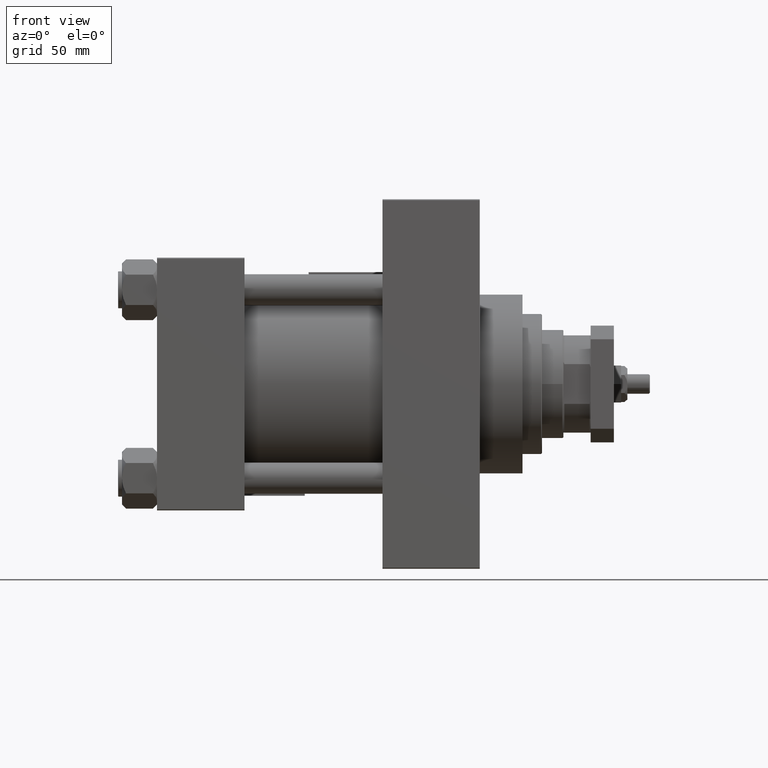
[diagram: clean part render]
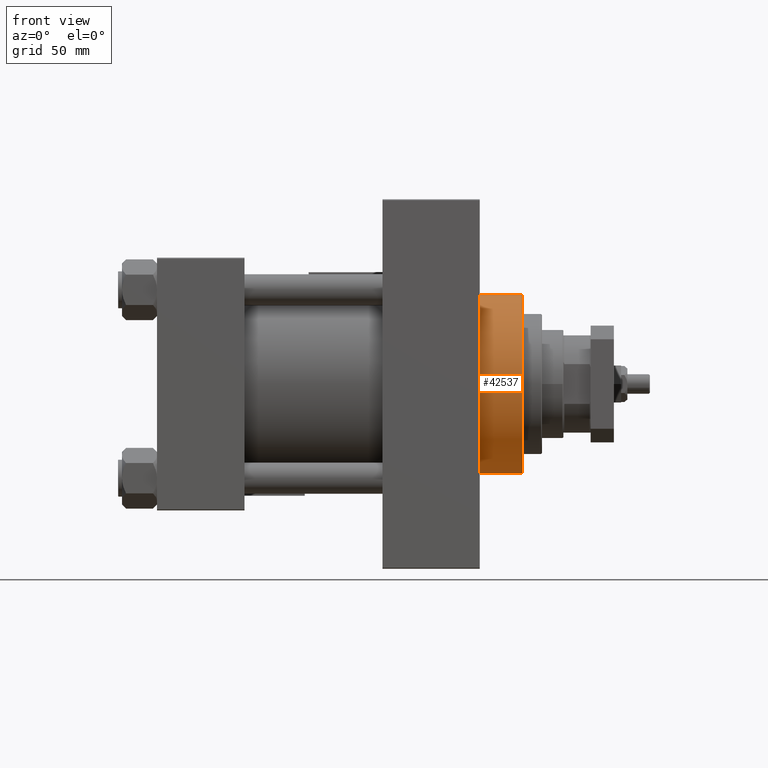
[diagram: same view with one face highlighted and labeled with its STEP entity id]
A machine part, front view. The second image highlights one B-rep face of the part: STEP entity #42537.
In plain terms, the highlighted cylindrical surface (partial cylindrical patch) has radius 46 mm, axis along (-1, -0, -0).
Its self-contained STEP definition (entity closure, byte-faithful):
#951 = EDGE_LOOP ( 'NONE', ( #29225, #3516, #38727, #40264 ) ) ;
#1208 = CARTESIAN_POINT ( 'NONE',  ( 165.9999999999999716, 0.000000000000000000, 46.00000000000000000 ) ) ;
#1877 = CIRCLE ( 'NONE', #52101, 46.00000000000000000 ) ;
#2522 = AXIS2_PLACEMENT_3D ( 'NONE', #33751, #8888, #5083 ) ;
#3032 = LINE ( 'NONE', #52489, #6439 ) ;
#3516 = ORIENTED_EDGE ( 'NONE', *, *, #42127, .F. ) ;
#3755 = VERTEX_POINT ( 'NONE', #34724 ) ;
#4289 = CARTESIAN_POINT ( 'NONE',  ( 165.9999999999999716, 5.633375276077824704E-15, -46.00000000000000000 ) ) ;
#5083 = DIRECTION ( 'NONE',  ( 0.000000000000000000, 0.000000000000000000, -1.000000000000000000 ) ) ;
#5977 = AXIS2_PLACEMENT_3D ( 'NONE', #49874, #41540, #18467 ) ;
#6439 = VECTOR ( 'NONE', #15466, 1000.000000000000000 ) ;
#8888 = DIRECTION ( 'NONE',  ( 1.000000000000000000, 0.000000000000000000, 0.000000000000000000 ) ) ;
#10119 = VECTOR ( 'NONE', #41156, 1000.000000000000000 ) ;
#14148 = FACE_OUTER_BOUND ( 'NONE', #951, .T. ) ;
#14224 = VERTEX_POINT ( 'NONE', #1208 ) ;
#15318 = VERTEX_POINT ( 'NONE', #4289 ) ;
#15466 = DIRECTION ( 'NONE',  ( -1.000000000000000000, -0.000000000000000000, -0.000000000000000000 ) ) ;
#16202 = EDGE_CURVE ( 'NONE', #14224, #15318, #1877, .T. ) ;
#17588 = CARTESIAN_POINT ( 'NONE',  ( 165.9999999999999716, 0.000000000000000000, 0.000000000000000000 ) ) ;
#18467 = DIRECTION ( 'NONE',  ( 0.000000000000000000, 0.000000000000000000, 1.000000000000000000 ) ) ;
#23128 = CARTESIAN_POINT ( 'NONE',  ( 187.9999999999999716, 5.633375276077824704E-15, -46.00000000000000000 ) ) ;
#27056 = DIRECTION ( 'NONE',  ( 0.000000000000000000, 0.000000000000000000, -1.000000000000000000 ) ) ;
#28471 = CARTESIAN_POINT ( 'NONE',  ( 187.9999999999999716, 5.633375276077824704E-15, -46.00000000000000000 ) ) ;
#29225 = ORIENTED_EDGE ( 'NONE', *, *, #46734, .F. ) ;
#31901 = CIRCLE ( 'NONE', #2522, 46.00000000000000000 ) ;
#32049 = EDGE_CURVE ( 'NONE', #3755, #14224, #3032, .T. ) ;
#32862 = VERTEX_POINT ( 'NONE', #23128 ) ;
#33751 = CARTESIAN_POINT ( 'NONE',  ( 187.9999999999999716, 0.000000000000000000, 0.000000000000000000 ) ) ;
#34724 = CARTESIAN_POINT ( 'NONE',  ( 187.9999999999999716, 0.000000000000000000, 46.00000000000000000 ) ) ;
#36835 = LINE ( 'NONE', #28471, #10119 ) ;
#38727 = ORIENTED_EDGE ( 'NONE', *, *, #32049, .T. ) ;
#40264 = ORIENTED_EDGE ( 'NONE', *, *, #16202, .T. ) ;
#41156 = DIRECTION ( 'NONE',  ( -1.000000000000000000, -0.000000000000000000, -0.000000000000000000 ) ) ;
#41540 = DIRECTION ( 'NONE',  ( -1.000000000000000000, -0.000000000000000000, -0.000000000000000000 ) ) ;
#42127 = EDGE_CURVE ( 'NONE', #3755, #32862, #31901, .T. ) ;
#42537 = ADVANCED_FACE ( 'NONE', ( #14148 ), #47093, .T. ) ;
#46734 = EDGE_CURVE ( 'NONE', #32862, #15318, #36835, .T. ) ;
#47093 = CYLINDRICAL_SURFACE ( 'NONE', #5977, 46.00000000000000000 ) ;
#47302 = DIRECTION ( 'NONE',  ( 1.000000000000000000, 0.000000000000000000, 0.000000000000000000 ) ) ;
#49874 = CARTESIAN_POINT ( 'NONE',  ( 187.9999999999999716, 0.000000000000000000, 0.000000000000000000 ) ) ;
#52101 = AXIS2_PLACEMENT_3D ( 'NONE', #17588, #47302, #27056 ) ;
#52489 = CARTESIAN_POINT ( 'NONE',  ( 187.9999999999999716, 0.000000000000000000, 46.00000000000000000 ) ) ;